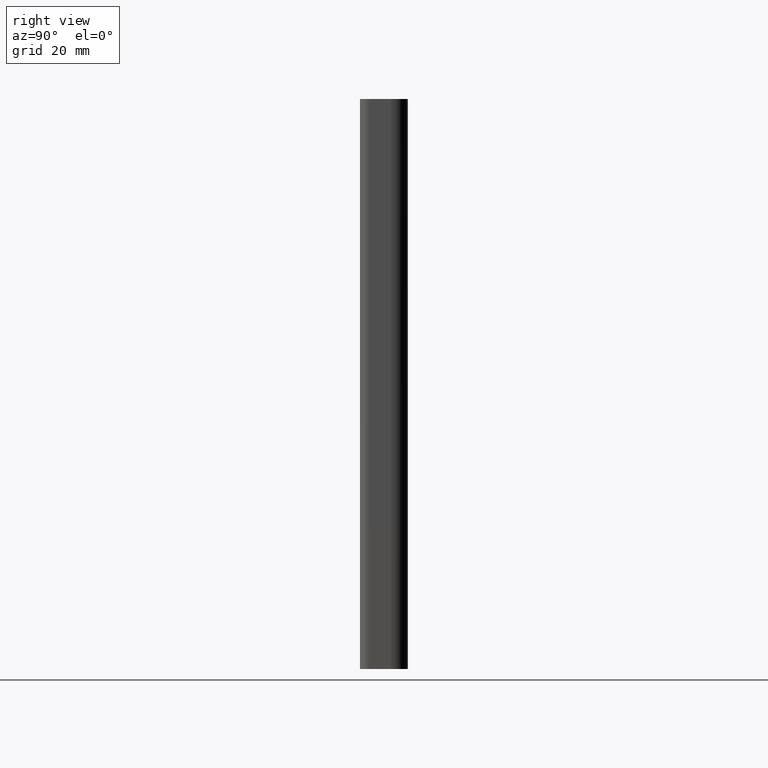
[diagram: clean part render]
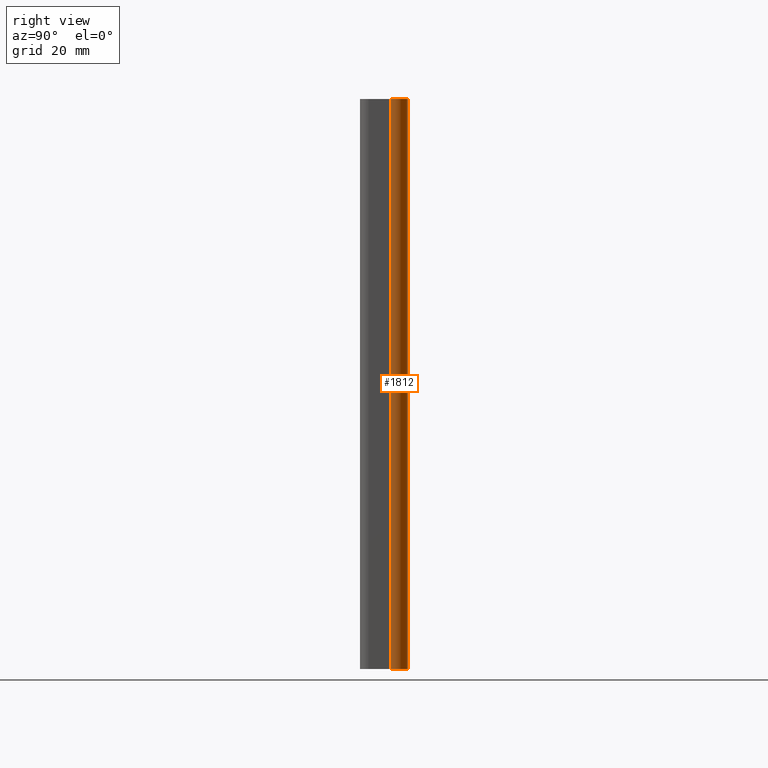
[diagram: same view with one face highlighted and labeled with its STEP entity id]
A machine part, right view. The second image highlights one B-rep face of the part: STEP entity #1812.
In plain terms, the highlighted cylindrical surface (edge-blend (fillet) strip) has radius 3 mm, axis along (0, 0, 1).
Its self-contained STEP definition (entity closure, byte-faithful):
#69=CIRCLE('',#1961,3.);
#70=CIRCLE('',#1962,3.);
#120=CYLINDRICAL_SURFACE('',#1960,3.);
#201=FACE_OUTER_BOUND('',#293,.T.);
#293=EDGE_LOOP('',(#1426,#1427,#1428,#1429));
#469=LINE('',#2958,#661);
#470=LINE('',#2964,#662);
#661=VECTOR('',#2408,100.);
#662=VECTOR('',#2415,100.);
#838=VERTEX_POINT('',#2954);
#839=VERTEX_POINT('',#2956);
#840=VERTEX_POINT('',#2960);
#841=VERTEX_POINT('',#2962);
#1087=EDGE_CURVE('',#838,#839,#469,.T.);
#1088=EDGE_CURVE('',#840,#838,#69,.T.);
#1089=EDGE_CURVE('',#841,#839,#70,.T.);
#1090=EDGE_CURVE('',#840,#841,#470,.T.);
#1426=ORIENTED_EDGE('',*,*,#1088,.T.);
#1427=ORIENTED_EDGE('',*,*,#1087,.T.);
#1428=ORIENTED_EDGE('',*,*,#1089,.F.);
#1429=ORIENTED_EDGE('',*,*,#1090,.F.);
#1812=ADVANCED_FACE('',(#201),#120,.T.);
#1960=AXIS2_PLACEMENT_3D('',#2959,#2409,#2410);
#1961=AXIS2_PLACEMENT_3D('',#2961,#2411,#2412);
#1962=AXIS2_PLACEMENT_3D('',#2963,#2413,#2414);
#2408=DIRECTION('',(0.,0.,1.));
#2409=DIRECTION('center_axis',(0.,0.,1.));
#2410=DIRECTION('ref_axis',(1.,0.,0.));
#2411=DIRECTION('center_axis',(0.,0.,1.));
#2412=DIRECTION('ref_axis',(1.,0.,0.));
#2413=DIRECTION('center_axis',(0.,0.,1.));
#2414=DIRECTION('ref_axis',(1.,0.,0.));
#2415=DIRECTION('',(0.,0.,1.));
#2954=CARTESIAN_POINT('',(37.0000000265242,1.50000002692307,0.));
#2956=CARTESIAN_POINT('',(37.0000000265242,1.50000002692307,100.));
#2958=CARTESIAN_POINT('',(37.0000000265242,1.50000002692307,0.));
#2959=CARTESIAN_POINT('Origin',(36.9999999865243,-1.49999997307693,0.));
#2960=CARTESIAN_POINT('',(39.9999999865243,-1.49999997307693,0.));
#2961=CARTESIAN_POINT('Origin',(36.9999999865243,-1.49999997307693,0.));
#2962=CARTESIAN_POINT('',(39.9999999865243,-1.49999997307693,100.));
#2963=CARTESIAN_POINT('Origin',(36.9999999865243,-1.49999997307693,100.));
#2964=CARTESIAN_POINT('',(39.9999999865243,-1.49999997307693,0.));